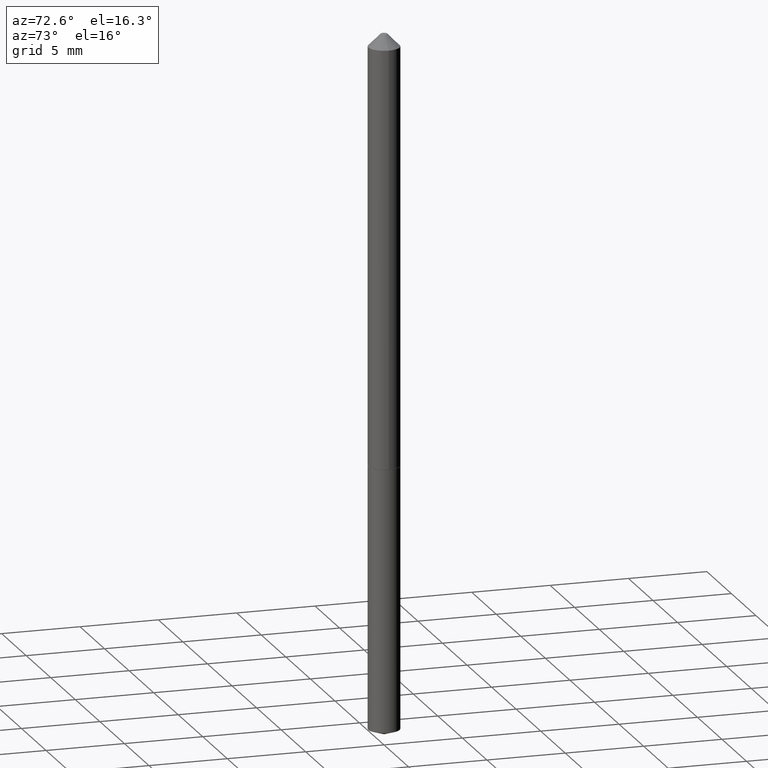
[diagram: clean part render]
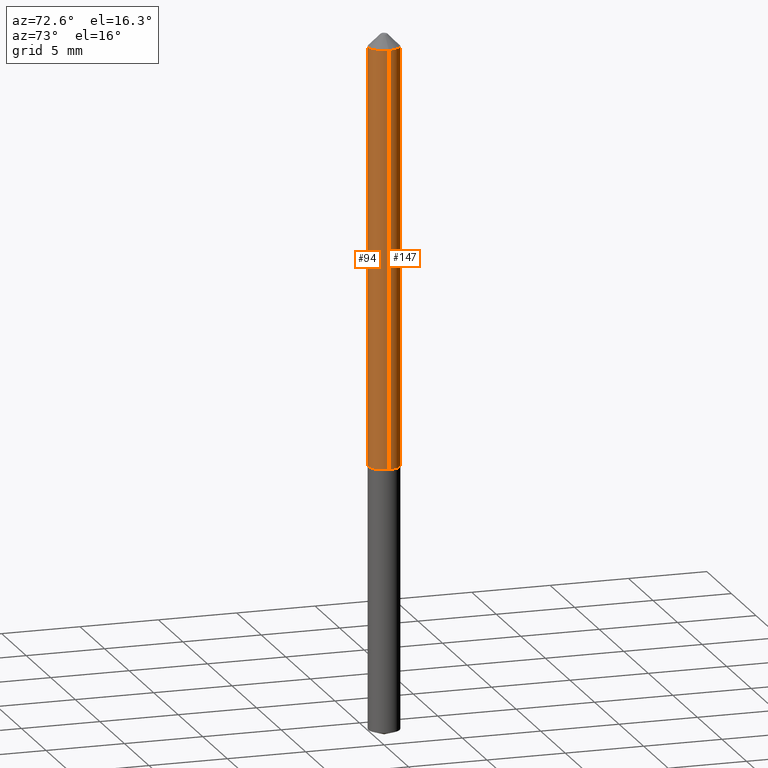
[diagram: same view with one multi-face feature highlighted, each face labeled with its STEP entity id]
A machine part, auxiliary view. The highlighted faces form ONE feature: a constant-radius fillet chain: 2 tangent blend faces with common blend radius 0.997 mm. The faces share edges in the B-rep.
Their STEP definitions:
[1] entity #147 (Cylinder):
#18 = DIRECTION ( 'NONE',  ( -2.445468806185136597E-29, 3.491481338843145583E-15, 1.000000000000000000 ) ) ;
#24 = EDGE_CURVE ( 'NONE', #352, #188, #274, .T. ) ;
#31 = DIRECTION ( 'NONE',  ( 1.000000000000000000, -6.982962677686266711E-15, 4.876176775795935232E-29 ) ) ;
#53 = LINE ( 'NONE', #121, #82 ) ;
#82 = VECTOR ( 'NONE', #111, 39.37007874015748143 ) ;
#97 = AXIS2_PLACEMENT_3D ( 'NONE', #289, #18, #31 ) ;
#105 = CARTESIAN_POINT ( 'NONE',  ( -0.03925000000000006956, 2.788880237858398172E-16, -1.930682022925053676E-30 ) ) ;
#111 = DIRECTION ( 'NONE',  ( -2.445468806185136877E-29, 3.491481338843145188E-15, 1.000000000000000000 ) ) ;
#121 = CARTESIAN_POINT ( 'NONE',  ( 0.03925000000000006956, -2.740812850991864634E-16, 1.913899384499908036E-30 ) ) ;
#126 = CARTESIAN_POINT ( 'NONE',  ( -0.03925000000000013201, -3.484928859487070232E-15, -1.077999999999999847 ) ) ;
#136 = DIRECTION ( 'NONE',  ( 1.000000000000000000, -6.982962677686266711E-15, 0.000000000000000000 ) ) ;
#138 = EDGE_CURVE ( 'NONE', #377, #233, #53, .T. ) ;
#147 = ADVANCED_FACE ( 'NONE', ( #340 ), #176, .T. ) ;
#159 = CIRCLE ( 'NONE', #366, 0.03925000000000000017 ) ;
#161 = ORIENTED_EDGE ( 'NONE', *, *, #273, .F. ) ;
#162 = CARTESIAN_POINT ( 'NONE',  ( 0.03925000000000013201, -4.037898168372097104E-15, -1.077999999999999847 ) ) ;
#163 = ORIENTED_EDGE ( 'NONE', *, *, #24, .T. ) ;
#176 = CYLINDRICAL_SURFACE ( 'NONE', #97, 0.03925000000000006956 ) ;
#180 = ORIENTED_EDGE ( 'NONE', *, *, #138, .F. ) ;
#181 = EDGE_LOOP ( 'NONE', ( #319, #163, #161, #180 ) ) ;
#188 = VERTEX_POINT ( 'NONE', #337 ) ;
#216 = CARTESIAN_POINT ( 'NONE',  ( 0.03925000000000000017, -3.831900769380349724E-16, -0.03125000000000020123 ) ) ;
#220 = AXIS2_PLACEMENT_3D ( 'NONE', #270, #236, #239 ) ;
#233 = VERTEX_POINT ( 'NONE', #216 ) ;
#236 = DIRECTION ( 'NONE',  ( -2.445468806185136597E-29, 3.491481338843145583E-15, 1.000000000000000000 ) ) ;
#239 = DIRECTION ( 'NONE',  ( 1.000000000000000000, -6.982962677686265922E-15, 0.000000000000000000 ) ) ;
#250 = VECTOR ( 'NONE', #305, 39.37007874015748143 ) ;
#268 = EDGE_CURVE ( 'NONE', #377, #352, #318, .T. ) ;
#270 = CARTESIAN_POINT ( 'NONE',  ( 2.636215373067577193E-29, -3.763816883272910789E-15, -1.077999999999999847 ) ) ;
#273 = EDGE_CURVE ( 'NONE', #233, #188, #159, .T. ) ;
#274 = LINE ( 'NONE', #105, #250 ) ;
#289 = CARTESIAN_POINT ( 'NONE',  ( 0.000000000000000000, 0.000000000000000000, 0.000000000000000000 ) ) ;
#297 = DIRECTION ( 'NONE',  ( -2.445468806185136597E-29, 3.491481338843145583E-15, 1.000000000000000000 ) ) ;
#305 = DIRECTION ( 'NONE',  ( -2.445468806185136877E-29, 3.491481338843145188E-15, 1.000000000000000000 ) ) ;
#318 = CIRCLE ( 'NONE', #220, 0.03925000000000013201 ) ;
#319 = ORIENTED_EDGE ( 'NONE', *, *, #268, .T. ) ;
#337 = CARTESIAN_POINT ( 'NONE',  ( -0.03925000000000000017, -1.657574813770038402E-15, -0.03125000000000020123 ) ) ;
#340 = FACE_OUTER_BOUND ( 'NONE', #181, .T. ) ;
#352 = VERTEX_POINT ( 'NONE', #126 ) ;
#356 = CARTESIAN_POINT ( 'NONE',  ( 7.642090019328601786E-31, -1.091087918388490144E-16, -0.03125000000000020123 ) ) ;
#366 = AXIS2_PLACEMENT_3D ( 'NONE', #356, #297, #136 ) ;
#377 = VERTEX_POINT ( 'NONE', #162 ) ;
[2] entity #94 (Cylinder):
#24 = EDGE_CURVE ( 'NONE', #352, #188, #274, .T. ) ;
#53 = LINE ( 'NONE', #121, #82 ) ;
#61 = ORIENTED_EDGE ( 'NONE', *, *, #24, .F. ) ;
#68 = DIRECTION ( 'NONE',  ( 1.000000000000000000, -6.982962677686266711E-15, 0.000000000000000000 ) ) ;
#82 = VECTOR ( 'NONE', #111, 39.37007874015748143 ) ;
#86 = DIRECTION ( 'NONE',  ( 1.000000000000000000, -6.982962677686265922E-15, 0.000000000000000000 ) ) ;
#94 = ADVANCED_FACE ( 'NONE', ( #225 ), #173, .T. ) ;
#102 = CARTESIAN_POINT ( 'NONE',  ( 0.000000000000000000, 0.000000000000000000, 0.000000000000000000 ) ) ;
#105 = CARTESIAN_POINT ( 'NONE',  ( -0.03925000000000006956, 2.788880237858398172E-16, -1.930682022925053676E-30 ) ) ;
#110 = EDGE_CURVE ( 'NONE', #352, #377, #378, .T. ) ;
#111 = DIRECTION ( 'NONE',  ( -2.445468806185136877E-29, 3.491481338843145188E-15, 1.000000000000000000 ) ) ;
#121 = CARTESIAN_POINT ( 'NONE',  ( 0.03925000000000006956, -2.740812850991864634E-16, 1.913899384499908036E-30 ) ) ;
#126 = CARTESIAN_POINT ( 'NONE',  ( -0.03925000000000013201, -3.484928859487070232E-15, -1.077999999999999847 ) ) ;
#135 = DIRECTION ( 'NONE',  ( -2.445468806185136597E-29, 3.491481338843145583E-15, 1.000000000000000000 ) ) ;
#137 = CIRCLE ( 'NONE', #175, 0.03925000000000000017 ) ;
#138 = EDGE_CURVE ( 'NONE', #377, #233, #53, .T. ) ;
#162 = CARTESIAN_POINT ( 'NONE',  ( 0.03925000000000013201, -4.037898168372097104E-15, -1.077999999999999847 ) ) ;
#169 = DIRECTION ( 'NONE',  ( 1.000000000000000000, -6.982962677686266711E-15, 4.876176775795935232E-29 ) ) ;
#173 = CYLINDRICAL_SURFACE ( 'NONE', #299, 0.03925000000000006956 ) ;
#175 = AXIS2_PLACEMENT_3D ( 'NONE', #381, #332, #68 ) ;
#188 = VERTEX_POINT ( 'NONE', #337 ) ;
#205 = ORIENTED_EDGE ( 'NONE', *, *, #345, .F. ) ;
#216 = CARTESIAN_POINT ( 'NONE',  ( 0.03925000000000000017, -3.831900769380349724E-16, -0.03125000000000020123 ) ) ;
#225 = FACE_OUTER_BOUND ( 'NONE', #358, .T. ) ;
#228 = AXIS2_PLACEMENT_3D ( 'NONE', #256, #344, #86 ) ;
#233 = VERTEX_POINT ( 'NONE', #216 ) ;
#238 = ORIENTED_EDGE ( 'NONE', *, *, #110, .T. ) ;
#250 = VECTOR ( 'NONE', #305, 39.37007874015748143 ) ;
#256 = CARTESIAN_POINT ( 'NONE',  ( 2.636215373067577193E-29, -3.763816883272910789E-15, -1.077999999999999847 ) ) ;
#274 = LINE ( 'NONE', #105, #250 ) ;
#299 = AXIS2_PLACEMENT_3D ( 'NONE', #102, #135, #169 ) ;
#303 = ORIENTED_EDGE ( 'NONE', *, *, #138, .T. ) ;
#305 = DIRECTION ( 'NONE',  ( -2.445468806185136877E-29, 3.491481338843145188E-15, 1.000000000000000000 ) ) ;
#332 = DIRECTION ( 'NONE',  ( -2.445468806185136597E-29, 3.491481338843145583E-15, 1.000000000000000000 ) ) ;
#337 = CARTESIAN_POINT ( 'NONE',  ( -0.03925000000000000017, -1.657574813770038402E-15, -0.03125000000000020123 ) ) ;
#344 = DIRECTION ( 'NONE',  ( -2.445468806185136597E-29, 3.491481338843145583E-15, 1.000000000000000000 ) ) ;
#345 = EDGE_CURVE ( 'NONE', #188, #233, #137, .T. ) ;
#352 = VERTEX_POINT ( 'NONE', #126 ) ;
#358 = EDGE_LOOP ( 'NONE', ( #61, #238, #303, #205 ) ) ;
#377 = VERTEX_POINT ( 'NONE', #162 ) ;
#378 = CIRCLE ( 'NONE', #228, 0.03925000000000013201 ) ;
#381 = CARTESIAN_POINT ( 'NONE',  ( 7.642090019328601786E-31, -1.091087918388490144E-16, -0.03125000000000020123 ) ) ;